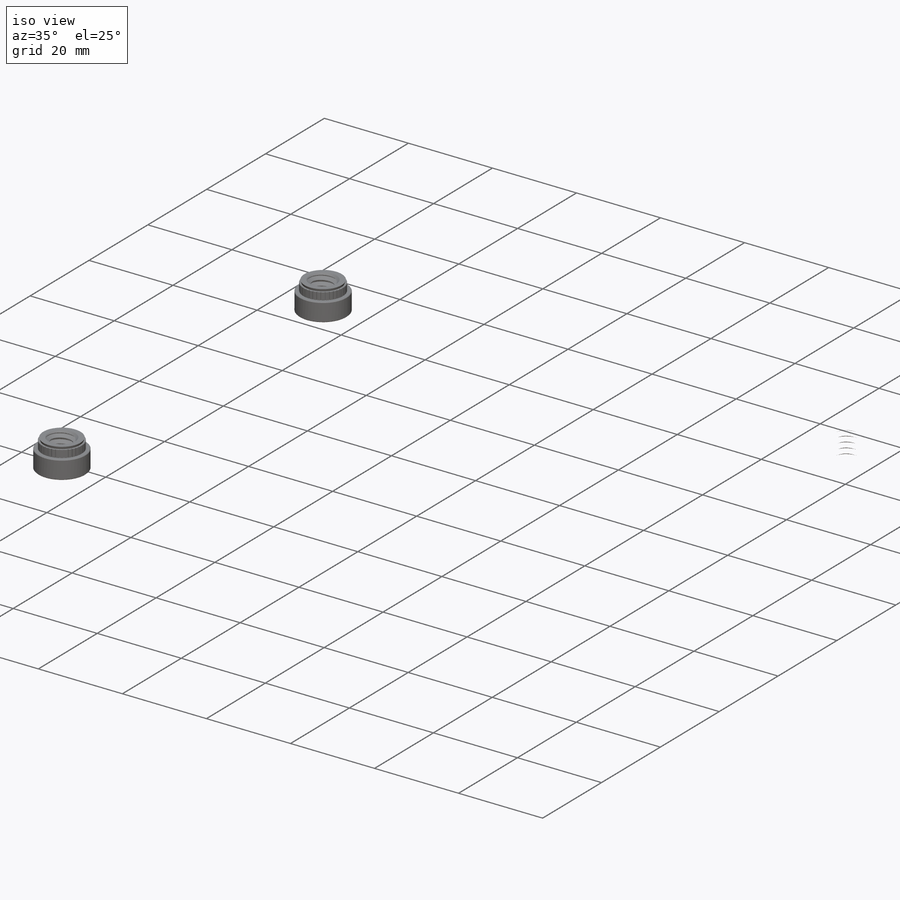
[diagram: iso view]
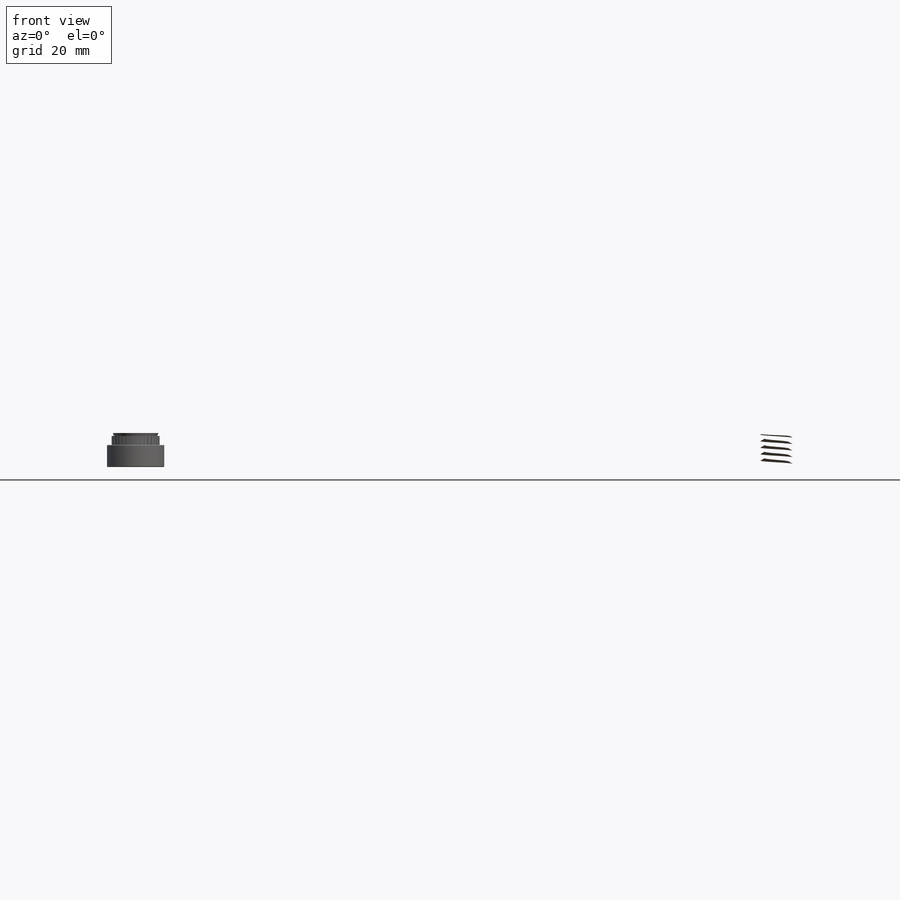
[diagram: front view]
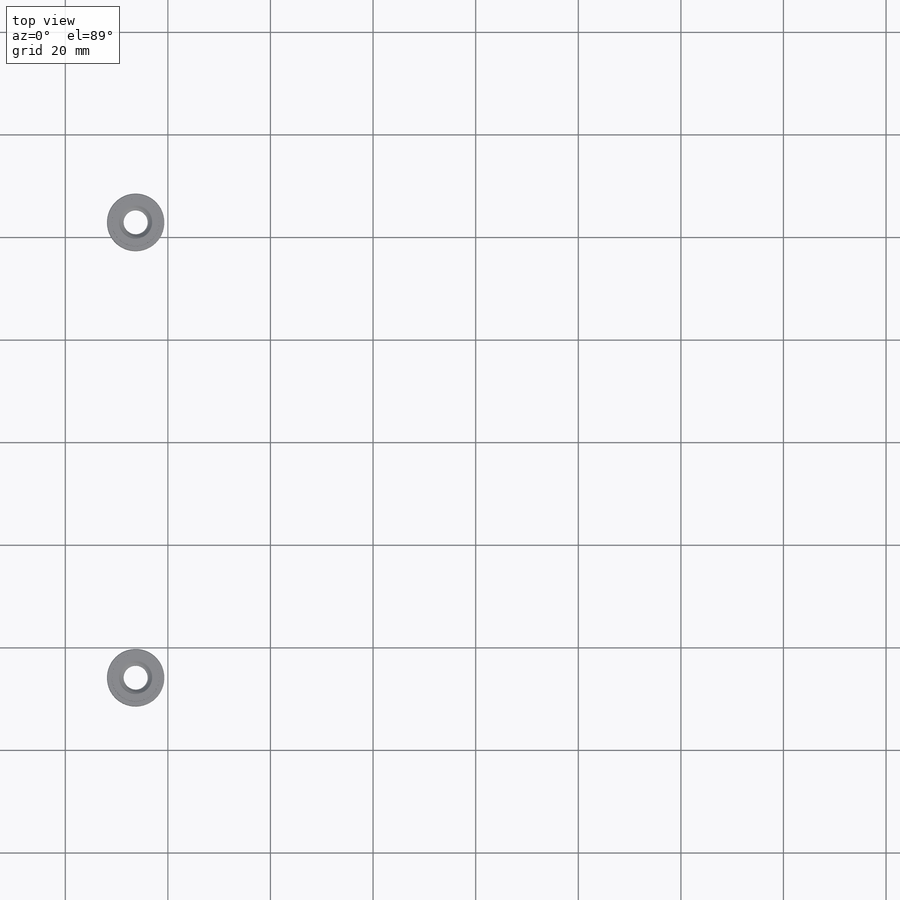
[diagram: top view]
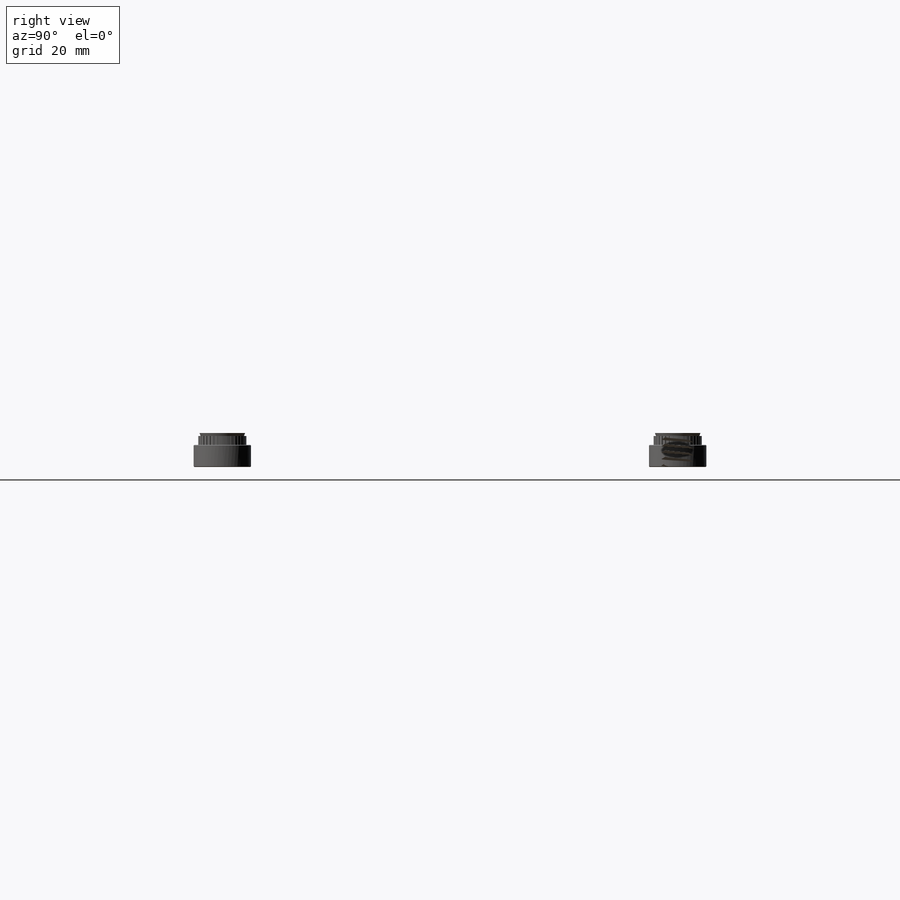
[diagram: right view]
SOLIDWORKS PART (.sldprt)
format: sldprt  version: not decoded by parser v0  size: 4,406,272 bytes
history: native  units: mm
features: sketch x23, cut_extrude x11, extrude x9, move_body x8, fillet x3, material x1 + 8 further entries (+52 scaffold rows collapsed; 40 parser-record rows omitted)
feature tree (155):
  scaffold x52  (default folders/planes/origin — collapsed)
  material  "Material <not specified>"
  sketch  "Sketch1"  dims[D1=6.604mm]
  sketch  "Sketch2"  dims[D1=6.35mm]
  cut_extrude  "Cut-Extrude2"  Depth=50.8mm
  sketch  "Sketch3"  dims[D1=5.08mm]
  sketch  "Sketch4"
  cut_extrude  "Cut-Extrude4"  Depth=5.08mm
  sketch  "Sketch5"  dims[D1=0.0mm D2=0.0mm]
  extrude  "Boss-Extrude1"  Depth=45.085mm
  sketch  "Sketch6"  dims[D1=2.54mm D2=25.4mm D3=25.4mm]
  extrude  "Boss-Extrude2"  Depth=70.485mm
  sketch  "Sketch7"  dims[D1=2.54mm]
  extrude  "Boss-Extrude3"  Depth=22.86mm
  sketch  "Sketch8"  dims[D1=2.54mm]
  extrude  "Boss-Extrude4"  Depth=22.86mm
  sketch  "Sketch9"  dims[D1=8.128mm]
  cut_extrude  "Cut-Extrude5"  Depth=25.4mm
  fillet  "Fillet1"  Radius=6.35mm
  "96439A610"
  parser-record x40  (decoder bookkeeping rows leaked as tree rows — omitted from the tree; the rows remain in map.json)
  move_body  "Body-Move/Copy2"
  "96439A6102"
  move_body  "Body-Move/Copy4"
  "96439A6103"
  move_body  "Body-Move/Copy6"
  "96439A6104"
  move_body  "Body-Move/Copy8"
  sketch  "Sketch10"  dims[D1=6.35mm D3=6.35mm D2=19.05mm D4=19.05mm]
  cut_extrude  "Cut-Extrude6"  Depth=7.62mm
  sketch  "Sketch11"  dims[D1=5.08mm]
  cut_extrude  "Cut-Extrude7"  Depth=5.08mm
  sketch  "Sketch12"
  extrude  "Boss-Extrude5"  [1 undecoded]
  sketch  "Sketch13"  dims[D3=2.032mm D1=6.35mm D2=44.45mm]
  cut_extrude  "Cut-Extrude8"  Depth=5.08mm
  sketch  "Sketch15"  dims[D1=57.15mm D2=1.651mm D3=45.72mm]
  extrude  "Boss-Extrude6"  Depth=2.54mm
  fillet  "Fillet2"  Radius=6.35mm
  sketch  "Sketch14"  dims[D1=40.0mm D2=1.0mm D3=26.0mm D4=24.0mm]
  extrude  "Boss-Extrude7"  Depth=55mm
  fillet  "Fillet3"  Radius=2.54mm
  sketch  "Sketch16"  dims[D1=17.0mm]
  extrude  "Boss-Extrude8"  Depth=1mm
  sketch  "Sketch17"  dims[D1=10.0mm]
  extrude  "Boss-Extrude9"  Depth=10mm
  sketch  "Sketch18"  dims[D1=2.0mm]
  cut_extrude  "Cut-Extrude9"  Depth=12.54mm
  sketch  "Sketch19"  dims[D1=1.524mm]
  cut_extrude  "Cut-Extrude10"  Depth=12.54mm
  sketch  "Sketch20"  dims[D1=1.5mm D2=4.0mm D3=11.0mm D4=11.0mm]
  cut_extrude  "Cut-Extrude11"  Depth=12.54mm
  sketch  "Sketch22"  dims[D1=4.2164mm]
  cut_extrude  "Cut-Extrude13"  Depth=12.54mm
  "95185A140"
  move_body  "Body-Move/Copy10"
  "95185A1403"
  move_body  "Body-Move/Copy12"
  "95185A1404"
  move_body  "Body-Move/Copy14"
  "95185A1405"
  move_body  "Body-Move/Copy16"
  sketch  "Sketch23"
  sketch  "Sketch25"  dims[D1=12.7mm]
  cut_extrude  "Cut-Extrude14"  Depth=5.08mm
decode coverage: 42 of 54 modeling features carry decoded parameters; 8 rows unclassified (native names shown)
note: 1 parameter value undecoded
note: suppression state not decoded; provenance and decode notes live in map.json
